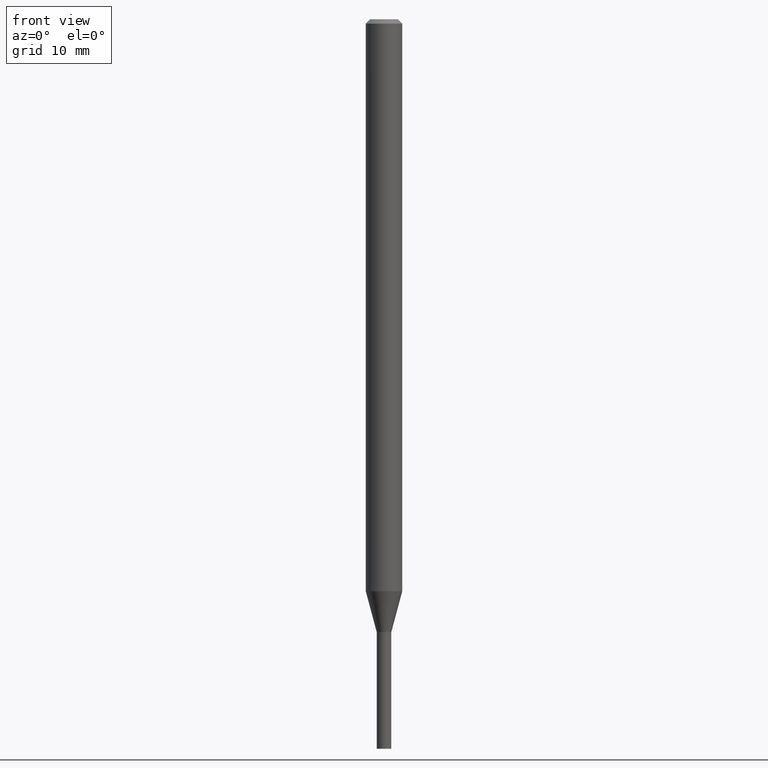
[diagram: clean part render]
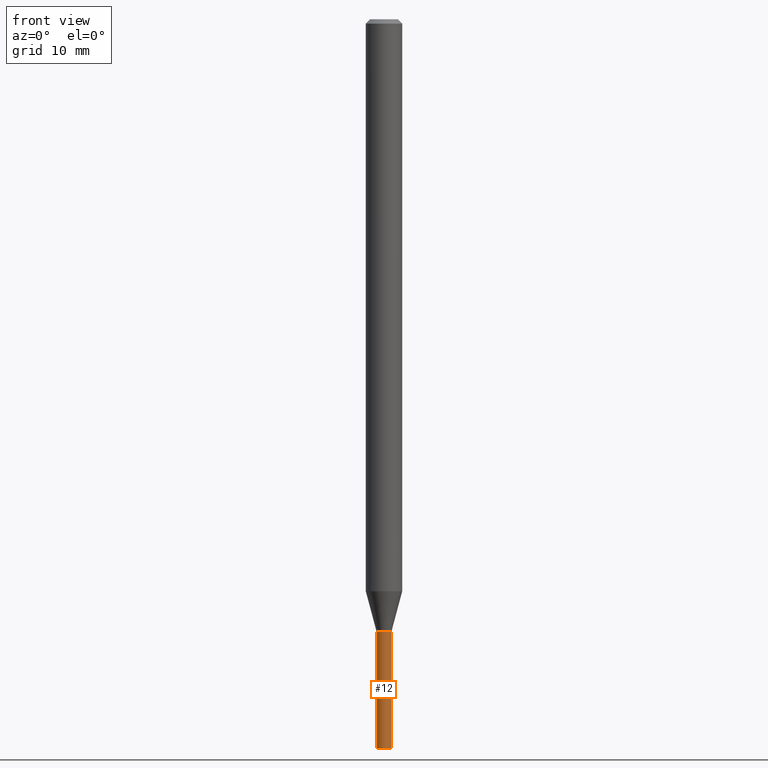
[diagram: same view with one face highlighted and labeled with its STEP entity id]
A machine part, front view. The second image highlights one B-rep face of the part: STEP entity #12.
In plain terms, the highlighted cylindrical surface (edge-blend (fillet) strip) has radius 0.635 mm, axis along (-0, 0, 1).
Its self-contained STEP definition (entity closure, byte-faithful):
#3 = DIRECTION ( 'NONE',  ( 1.000000000000000000, -6.982962677686267499E-15, 4.876176775795936353E-29 ) ) ;
#12 = ADVANCED_FACE ( 'NONE', ( #162 ), #302, .T. ) ;
#17 = DIRECTION ( 'NONE',  ( -2.445468806185136877E-29, 3.491481338843145188E-15, 1.000000000000000000 ) ) ;
#22 = VERTEX_POINT ( 'NONE', #279 ) ;
#29 = VECTOR ( 'NONE', #17, 39.37007874015748143 ) ;
#51 = DIRECTION ( 'NONE',  ( -2.445468806185136877E-29, 3.491481338843145188E-15, 1.000000000000000000 ) ) ;
#66 = AXIS2_PLACEMENT_3D ( 'NONE', #306, #123, #259 ) ;
#67 = VERTEX_POINT ( 'NONE', #322 ) ;
#75 = ORIENTED_EDGE ( 'NONE', *, *, #366, .T. ) ;
#92 = LINE ( 'NONE', #268, #206 ) ;
#93 = ORIENTED_EDGE ( 'NONE', *, *, #376, .T. ) ;
#94 = CIRCLE ( 'NONE', #66, 0.02500000000000000139 ) ;
#95 = CARTESIAN_POINT ( 'NONE',  ( 5.135484492988787526E-29, -7.332110811570605290E-15, -2.100000000000000089 ) ) ;
#122 = LINE ( 'NONE', #337, #29 ) ;
#123 = DIRECTION ( 'NONE',  ( -2.445468806185136597E-29, 3.491481338843145583E-15, 1.000000000000000000 ) ) ;
#136 = ORIENTED_EDGE ( 'NONE', *, *, #207, .F. ) ;
#162 = FACE_OUTER_BOUND ( 'NONE', #343, .T. ) ;
#163 = DIRECTION ( 'NONE',  ( 1.000000000000000000, -6.982962677686254878E-15, 0.000000000000000000 ) ) ;
#190 = VERTEX_POINT ( 'NONE', #323 ) ;
#198 = CARTESIAN_POINT ( 'NONE',  ( 0.02500000000000000139, -7.506684878512761957E-15, -2.100000000000000089 ) ) ;
#206 = VECTOR ( 'NONE', #51, 39.37007874015748143 ) ;
#207 = EDGE_CURVE ( 'NONE', #190, #22, #122, .T. ) ;
#245 = DIRECTION ( 'NONE',  ( -2.445468806185136597E-29, 3.491481338843145583E-15, 1.000000000000000000 ) ) ;
#259 = DIRECTION ( 'NONE',  ( 1.000000000000000000, -6.982962677686254878E-15, 0.000000000000000000 ) ) ;
#268 = CARTESIAN_POINT ( 'NONE',  ( 0.02500000000000000139, -1.745740669421566924E-16, 1.219044193948984123E-30 ) ) ;
#279 = CARTESIAN_POINT ( 'NONE',  ( -0.02500000000000000139, -7.852771395399210701E-15, -2.100000000000000089 ) ) ;
#288 = EDGE_CURVE ( 'NONE', #22, #314, #402, .T. ) ;
#293 = AXIS2_PLACEMENT_3D ( 'NONE', #95, #385, #163 ) ;
#302 = CYLINDRICAL_SURFACE ( 'NONE', #347, 0.02500000000000000139 ) ;
#304 = CARTESIAN_POINT ( 'NONE',  ( 0.000000000000000000, 0.000000000000000000, 0.000000000000000000 ) ) ;
#306 = CARTESIAN_POINT ( 'NONE',  ( 6.113672015462842613E-29, -8.728703347107864943E-15, -2.500000000000000000 ) ) ;
#314 = VERTEX_POINT ( 'NONE', #198 ) ;
#322 = CARTESIAN_POINT ( 'NONE',  ( 0.02500000000000000139, -8.903277414050021610E-15, -2.500000000000000000 ) ) ;
#323 = CARTESIAN_POINT ( 'NONE',  ( -0.02500000000000000139, -7.852771395399210701E-15, -2.500000000000000000 ) ) ;
#337 = CARTESIAN_POINT ( 'NONE',  ( -0.02500000000000000139, 1.776356839400250563E-16, -1.229733772563726656E-30 ) ) ;
#343 = EDGE_LOOP ( 'NONE', ( #136, #75, #93, #424 ) ) ;
#347 = AXIS2_PLACEMENT_3D ( 'NONE', #304, #245, #3 ) ;
#366 = EDGE_CURVE ( 'NONE', #190, #67, #94, .T. ) ;
#376 = EDGE_CURVE ( 'NONE', #67, #314, #92, .T. ) ;
#385 = DIRECTION ( 'NONE',  ( -2.445468806185136597E-29, 3.491481338843145583E-15, 1.000000000000000000 ) ) ;
#402 = CIRCLE ( 'NONE', #293, 0.02500000000000000139 ) ;
#424 = ORIENTED_EDGE ( 'NONE', *, *, #288, .F. ) ;